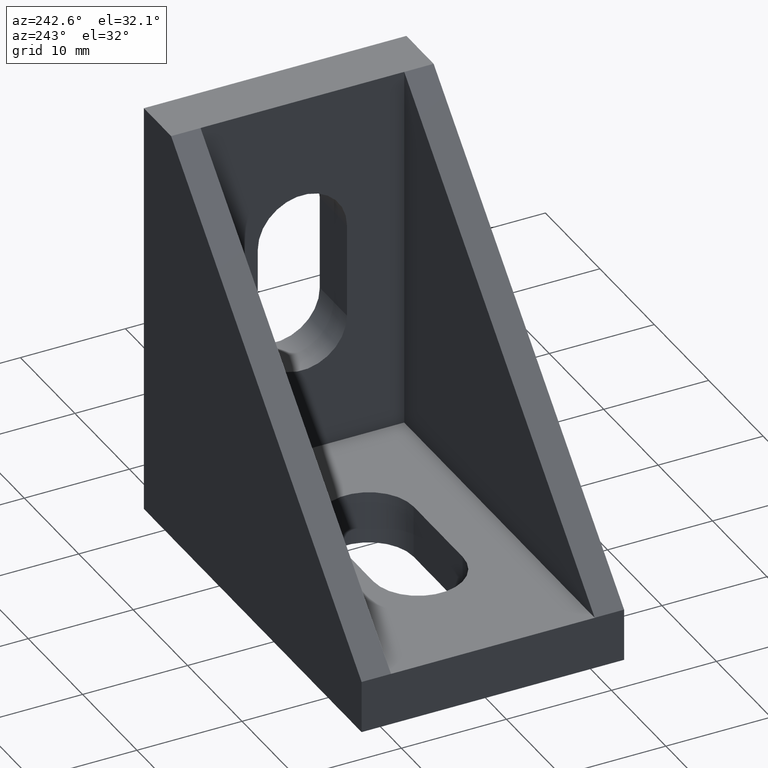
[diagram: clean part render]
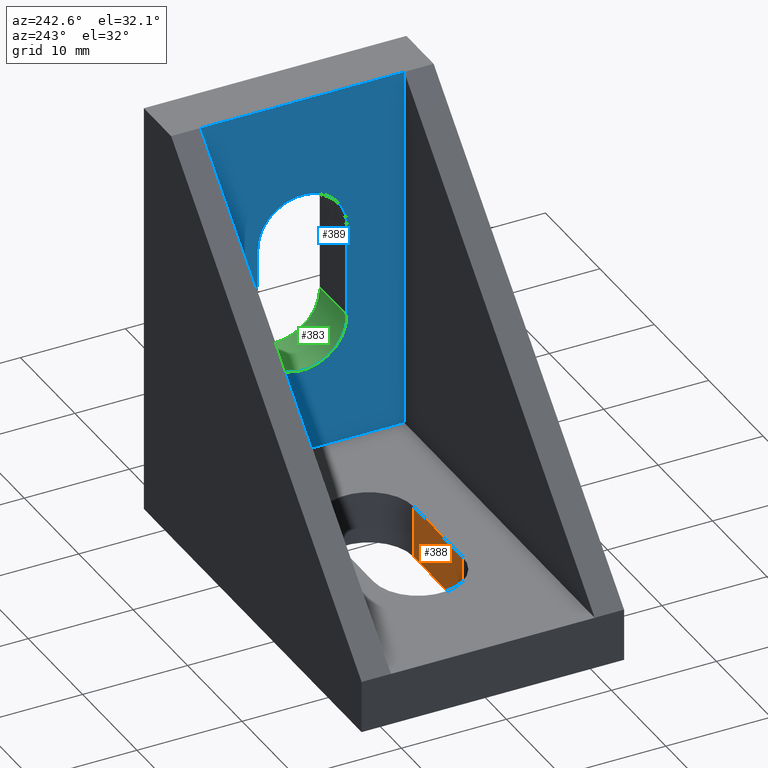
[diagram: same view with three faces highlighted in distinct colors, each labeled with its STEP entity id]
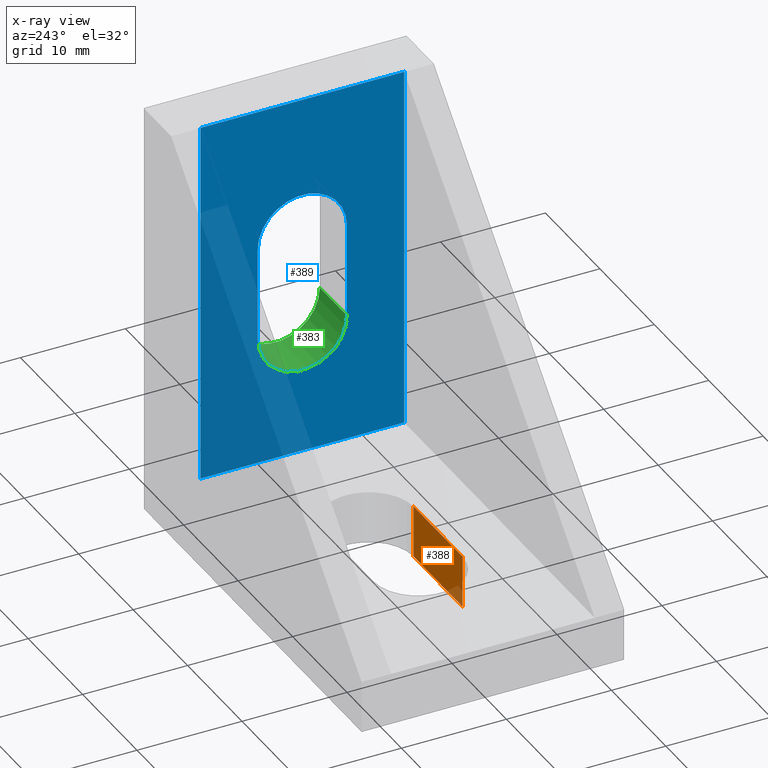
[diagram: x-ray of the same camera — body ghosted, the three highlighted faces saturated]
A machine part, auxiliary view with three faces highlighted in distinct colors.
The next image is the same camera in x-ray (body ghosted, the three faces saturated) — at least one of them is partly hidden behind the body in this view.
Their STEP definitions:

[orange] entity #388 — the highlighted planar face has unit normal (0, -1, 0).
#22=PLANE('',#439);
#42=FACE_OUTER_BOUND('',#62,.T.);
#62=EDGE_LOOP('',(#297,#298,#299,#300));
#88=LINE('',#589,#134);
#92=LINE('',#600,#138);
#93=LINE('',#603,#139);
#94=LINE('',#604,#140);
#134=VECTOR('',#485,10.);
#138=VECTOR('',#495,10.);
#139=VECTOR('',#500,10.);
#140=VECTOR('',#501,10.);
#188=VERTEX_POINT('',#583);
#190=VERTEX_POINT('',#587);
#193=VERTEX_POINT('',#597);
#194=VERTEX_POINT('',#599);
#230=EDGE_CURVE('',#188,#190,#88,.T.);
#235=EDGE_CURVE('',#193,#194,#92,.T.);
#237=EDGE_CURVE('',#188,#193,#93,.T.);
#238=EDGE_CURVE('',#194,#190,#94,.T.);
#297=ORIENTED_EDGE('',*,*,#237,.F.);
#298=ORIENTED_EDGE('',*,*,#230,.T.);
#299=ORIENTED_EDGE('',*,*,#238,.F.);
#300=ORIENTED_EDGE('',*,*,#235,.F.);
#388=ADVANCED_FACE('',(#42),#22,.F.);
#439=AXIS2_PLACEMENT_3D('',#602,#498,#499);
#485=DIRECTION('',(0.,0.,-1.));
#495=DIRECTION('',(0.,0.,-1.));
#498=DIRECTION('center_axis',(0.,-1.,0.));
#499=DIRECTION('ref_axis',(-1.,0.,0.));
#500=DIRECTION('',(-1.,0.,0.));
#501=DIRECTION('',(1.,0.,0.));
#583=CARTESIAN_POINT('',(5.24999999990997,-4.25,4.99999999997226));
#587=CARTESIAN_POINT('',(5.24999999990997,-4.25,-2.77378120472349E-11));
#589=CARTESIAN_POINT('',(5.24999999990997,-4.25,6.99999999997226));
#597=CARTESIAN_POINT('',(-3.75000000009003,-4.25,4.99999999997226));
#599=CARTESIAN_POINT('',(-3.75000000009003,-4.25,-2.77378120472349E-11));
#600=CARTESIAN_POINT('',(-3.75000000009003,-4.25,6.99999999997226));
#602=CARTESIAN_POINT('Origin',(5.24999999990997,-4.25,6.99999999997226));
#603=CARTESIAN_POINT('',(10.3749999999241,-4.25,4.99999999997226));
#604=CARTESIAN_POINT('',(-6.12502165355363,-4.25,-5.55111512312578E-16));

[blue] entity #389 — the highlighted planar face has unit normal (-1, 0, 0).
#15=FACE_BOUND('',#64,.T.);
#23=PLANE('',#440);
#43=FACE_OUTER_BOUND('',#63,.T.);
#63=EDGE_LOOP('',(#301,#302,#303,#304));
#64=EDGE_LOOP('',(#305,#306,#307,#308));
#81=LINE('',#568,#127);
#85=LINE('',#579,#131);
#95=LINE('',#608,#141);
#96=LINE('',#610,#142);
#97=LINE('',#612,#143);
#98=LINE('',#613,#144);
#127=VECTOR('',#464,10.);
#131=VECTOR('',#476,10.);
#141=VECTOR('',#504,15.);
#142=VECTOR('',#505,32.9999999998681);
#143=VECTOR('',#506,15.);
#144=VECTOR('',#507,32.9999999998681);
#171=CIRCLE('',#425,4.25);
#173=CIRCLE('',#429,4.25);
#179=VERTEX_POINT('',#558);
#180=VERTEX_POINT('',#559);
#183=VERTEX_POINT('',#567);
#185=VERTEX_POINT('',#573);
#195=VERTEX_POINT('',#606);
#196=VERTEX_POINT('',#607);
#197=VERTEX_POINT('',#609);
#198=VERTEX_POINT('',#611);
#215=EDGE_CURVE('',#179,#180,#171,.T.);
#219=EDGE_CURVE('',#183,#179,#81,.T.);
#222=EDGE_CURVE('',#185,#183,#173,.T.);
#225=EDGE_CURVE('',#180,#185,#85,.T.);
#239=EDGE_CURVE('',#195,#196,#95,.T.);
#240=EDGE_CURVE('',#197,#196,#96,.T.);
#241=EDGE_CURVE('',#198,#197,#97,.T.);
#242=EDGE_CURVE('',#198,#195,#98,.T.);
#301=ORIENTED_EDGE('',*,*,#239,.T.);
#302=ORIENTED_EDGE('',*,*,#240,.F.);
#303=ORIENTED_EDGE('',*,*,#241,.F.);
#304=ORIENTED_EDGE('',*,*,#242,.T.);
#305=ORIENTED_EDGE('',*,*,#215,.T.);
#306=ORIENTED_EDGE('',*,*,#225,.T.);
#307=ORIENTED_EDGE('',*,*,#222,.T.);
#308=ORIENTED_EDGE('',*,*,#219,.T.);
#389=ADVANCED_FACE('',(#43,#15),#23,.T.);
#425=AXIS2_PLACEMENT_3D('',#560,#456,#457);
#429=AXIS2_PLACEMENT_3D('',#574,#469,#470);
#440=AXIS2_PLACEMENT_3D('',#605,#502,#503);
#456=DIRECTION('center_axis',(1.,0.,0.));
#457=DIRECTION('ref_axis',(0.,-1.,0.));
#464=DIRECTION('',(0.,2.46716227694479E-16,1.));
#469=DIRECTION('center_axis',(1.,0.,0.));
#470=DIRECTION('ref_axis',(0.,1.,0.));
#476=DIRECTION('',(0.,0.,-1.));
#502=DIRECTION('center_axis',(-1.,0.,0.));
#503=DIRECTION('ref_axis',(0.,0.,1.));
#504=DIRECTION('',(0.,-1.,0.));
#505=DIRECTION('',(0.,0.,-1.));
#506=DIRECTION('',(0.,-1.,0.));
#507=DIRECTION('',(0.,0.,-1.));
#558=CARTESIAN_POINT('',(17.4999999999382,4.25000000000001,26.25));
#559=CARTESIAN_POINT('',(17.4999999999382,-4.25,26.25));
#560=CARTESIAN_POINT('Origin',(17.4999999999382,3.33066907387547E-15,26.25));
#567=CARTESIAN_POINT('',(17.4999999999382,4.25,17.25));
#568=CARTESIAN_POINT('',(17.4999999999382,4.25000000000001,28.6249999999202));
#573=CARTESIAN_POINT('',(17.4999999999382,-4.25,17.25));
#574=CARTESIAN_POINT('Origin',(17.4999999999382,3.33066907387547E-15,17.25));
#579=CARTESIAN_POINT('',(17.4999999999382,-4.25,33.1249999999202));
#605=CARTESIAN_POINT('Origin',(17.4999999999382,12.5,39.9999999998404));
#606=CARTESIAN_POINT('',(17.4999999999382,9.7,4.99999999997226));
#607=CARTESIAN_POINT('',(17.4999999999382,-9.7,4.99999999997226));
#608=CARTESIAN_POINT('',(17.4999999999382,7.5,4.99999999997226));
#609=CARTESIAN_POINT('',(17.4999999999382,-9.7,39.9999999998404));
#610=CARTESIAN_POINT('',(17.4999999999382,-9.7,39.9999999998404));
#611=CARTESIAN_POINT('',(17.4999999999382,9.7,39.9999999998404));
#612=CARTESIAN_POINT('',(17.4999999999382,7.5,39.9999999998404));
#613=CARTESIAN_POINT('',(17.4999999999382,9.7,39.9999999998404));

[green] entity #383 — the highlighted cylindrical surface (partial cylindrical patch) has radius 4.25 mm, axis along (1, 0, 0).
#37=FACE_OUTER_BOUND('',#57,.T.);
#57=EDGE_LOOP('',(#277,#278,#279,#280));
#82=LINE('',#570,#128);
#84=LINE('',#576,#130);
#128=VECTOR('',#465,10.);
#130=VECTOR('',#471,10.);
#173=CIRCLE('',#429,4.25);
#174=CIRCLE('',#430,4.25);
#183=VERTEX_POINT('',#567);
#184=VERTEX_POINT('',#569);
#185=VERTEX_POINT('',#573);
#186=VERTEX_POINT('',#575);
#220=EDGE_CURVE('',#183,#184,#82,.T.);
#222=EDGE_CURVE('',#185,#183,#173,.T.);
#223=EDGE_CURVE('',#185,#186,#84,.T.);
#224=EDGE_CURVE('',#184,#186,#174,.T.);
#277=ORIENTED_EDGE('',*,*,#222,.F.);
#278=ORIENTED_EDGE('',*,*,#223,.T.);
#279=ORIENTED_EDGE('',*,*,#224,.F.);
#280=ORIENTED_EDGE('',*,*,#220,.F.);
#378=CYLINDRICAL_SURFACE('',#428,4.25);
#383=ADVANCED_FACE('',(#37),#378,.F.);
#428=AXIS2_PLACEMENT_3D('',#572,#467,#468);
#429=AXIS2_PLACEMENT_3D('',#574,#469,#470);
#430=AXIS2_PLACEMENT_3D('',#577,#472,#473);
#465=DIRECTION('',(1.,0.,0.));
#467=DIRECTION('center_axis',(1.,0.,0.));
#468=DIRECTION('ref_axis',(0.,1.,0.));
#469=DIRECTION('center_axis',(1.,0.,0.));
#470=DIRECTION('ref_axis',(0.,1.,0.));
#471=DIRECTION('',(1.,0.,0.));
#472=DIRECTION('center_axis',(-1.,0.,0.));
#473=DIRECTION('ref_axis',(0.,1.,0.));
#567=CARTESIAN_POINT('',(17.4999999999382,4.25,17.25));
#569=CARTESIAN_POINT('',(22.4999999999382,4.25,17.25));
#570=CARTESIAN_POINT('',(15.4999999999382,4.25,17.25));
#572=CARTESIAN_POINT('Origin',(15.4999999999382,3.33066907387547E-15,17.25));
#573=CARTESIAN_POINT('',(17.4999999999382,-4.25,17.25));
#574=CARTESIAN_POINT('Origin',(17.4999999999382,3.33066907387547E-15,17.25));
#575=CARTESIAN_POINT('',(22.4999999999382,-4.25,17.25));
#576=CARTESIAN_POINT('',(15.4999999999382,-4.25,17.25));
#577=CARTESIAN_POINT('Origin',(22.49999999991,3.33066907387547E-15,17.25));